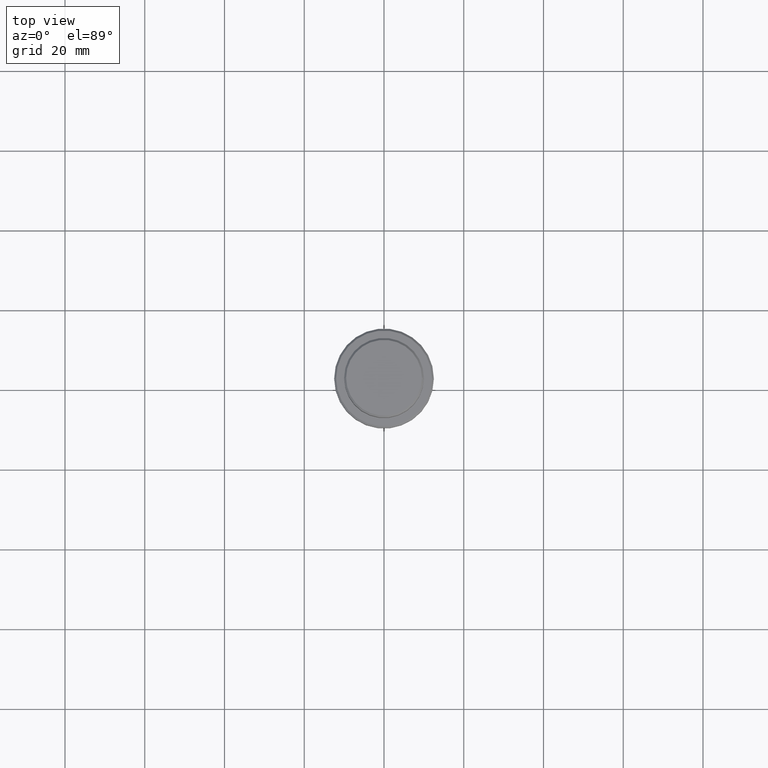
[diagram: clean part render]
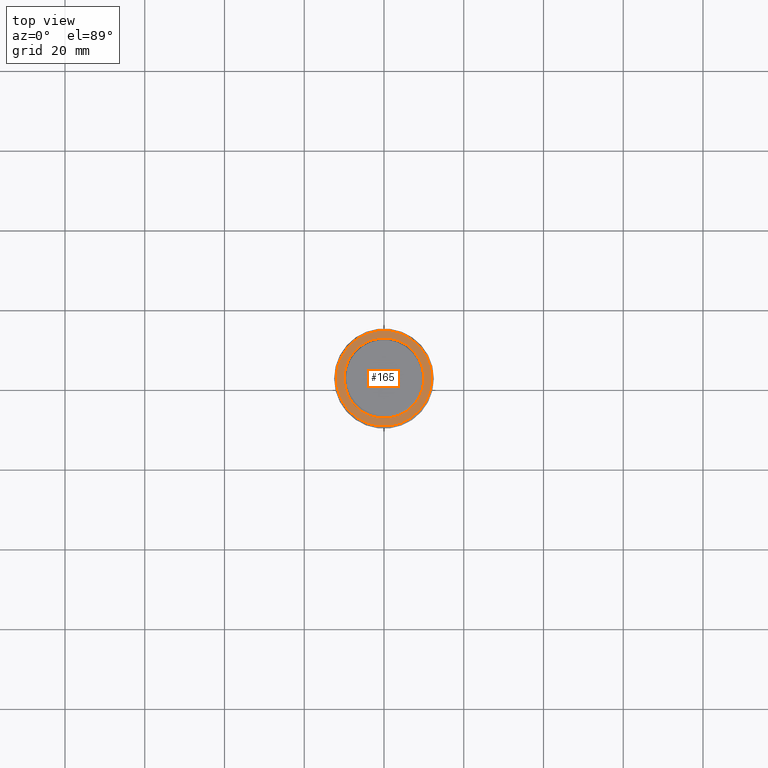
[diagram: same view with one face highlighted and labeled with its STEP entity id]
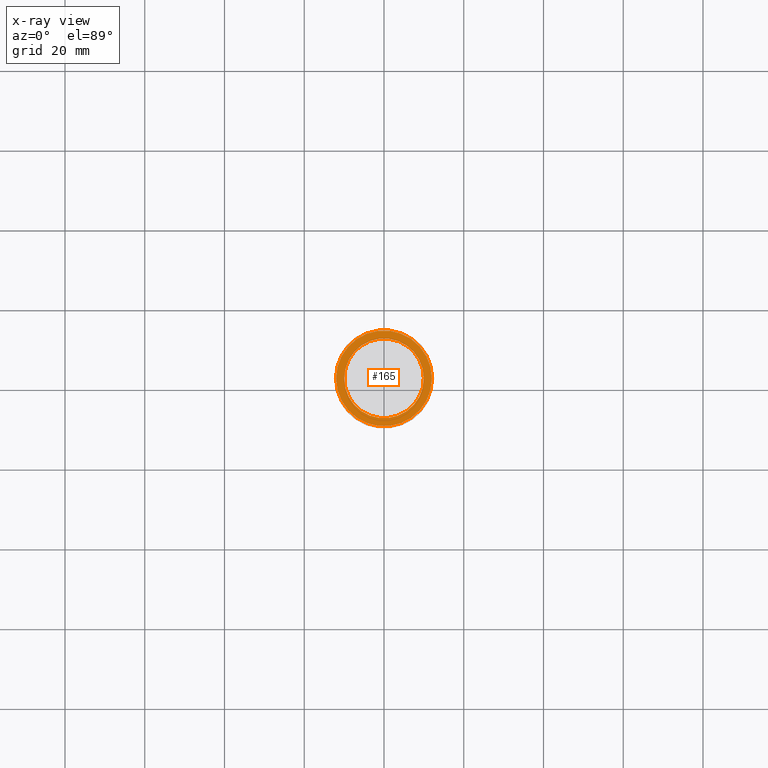
[diagram: x-ray of the same camera — body ghosted, the highlighted face saturated]
A machine part, top view. The second image highlights one B-rep face of the part: STEP entity #165.
The next image is the same camera in x-ray: the body ghosted, the highlighted face saturated — about 0% of this face is hidden behind the body in this view.
In plain terms, the highlighted planar face has unit normal (0, -0, 1).
Its self-contained STEP definition (entity closure, byte-faithful):
#1 = VERTEX_POINT ( 'NONE', #352 ) ;
#10 = DIRECTION ( 'NONE',  ( 0.000000000000000000, 0.000000000000000000, -1.000000000000000000 ) ) ;
#17 = EDGE_CURVE ( 'NONE', #1375, #1, #1149, .T. ) ;
#43 = VERTEX_POINT ( 'NONE', #94 ) ;
#79 = FACE_OUTER_BOUND ( 'NONE', #799, .T. ) ;
#94 = CARTESIAN_POINT ( 'NONE',  ( 9.999999999999992895, 0.000000000000000000, -9.000000000000000000 ) ) ;
#165 = ADVANCED_FACE ( 'NONE', ( #79, #190 ), #393, .T. ) ;
#176 = CIRCLE ( 'NONE', #1347, 9.999999999999992895 ) ;
#190 = FACE_BOUND ( 'NONE', #922, .T. ) ;
#251 = AXIS2_PLACEMENT_3D ( 'NONE', #1109, #1282, #1270 ) ;
#270 = EDGE_CURVE ( 'NONE', #43, #455, #176, .T. ) ;
#345 = DIRECTION ( 'NONE',  ( 0.000000000000000000, -0.000000000000000000, 1.000000000000000000 ) ) ;
#352 = CARTESIAN_POINT ( 'NONE',  ( -12.00000000000001066, 0.000000000000000000, -9.000000000000000000 ) ) ;
#393 = PLANE ( 'NONE',  #754 ) ;
#455 = VERTEX_POINT ( 'NONE', #771 ) ;
#459 = EDGE_CURVE ( 'NONE', #455, #43, #497, .T. ) ;
#467 = ORIENTED_EDGE ( 'NONE', *, *, #17, .T. ) ;
#494 = ORIENTED_EDGE ( 'NONE', *, *, #459, .T. ) ;
#497 = CIRCLE ( 'NONE', #251, 9.999999999999992895 ) ;
#548 = CARTESIAN_POINT ( 'NONE',  ( 0.000000000000000000, 0.000000000000000000, -9.000000000000000000 ) ) ;
#580 = DIRECTION ( 'NONE',  ( 1.000000000000000000, 0.000000000000000000, 0.000000000000000000 ) ) ;
#713 = DIRECTION ( 'NONE',  ( -0.000000000000000000, -0.000000000000000000, 1.000000000000000000 ) ) ;
#725 = ORIENTED_EDGE ( 'NONE', *, *, #270, .T. ) ;
#751 = AXIS2_PLACEMENT_3D ( 'NONE', #806, #713, #1171 ) ;
#754 = AXIS2_PLACEMENT_3D ( 'NONE', #1062, #345, #1330 ) ;
#771 = CARTESIAN_POINT ( 'NONE',  ( -9.999999999999992895, 1.224646799147352468E-15, -9.000000000000000000 ) ) ;
#781 = CARTESIAN_POINT ( 'NONE',  ( 0.000000000000000000, 0.000000000000000000, -9.000000000000000000 ) ) ;
#799 = EDGE_LOOP ( 'NONE', ( #925, #467 ) ) ;
#806 = CARTESIAN_POINT ( 'NONE',  ( 0.000000000000000000, 0.000000000000000000, -9.000000000000000000 ) ) ;
#854 = DIRECTION ( 'NONE',  ( 1.000000000000000000, 0.000000000000000000, 0.000000000000000000 ) ) ;
#922 = EDGE_LOOP ( 'NONE', ( #725, #494 ) ) ;
#925 = ORIENTED_EDGE ( 'NONE', *, *, #957, .T. ) ;
#946 = CARTESIAN_POINT ( 'NONE',  ( 12.00000000000001066, 1.500192328955508326E-15, -9.000000000000000000 ) ) ;
#957 = EDGE_CURVE ( 'NONE', #1, #1375, #1387, .T. ) ;
#1062 = CARTESIAN_POINT ( 'NONE',  ( 0.000000000000000000, 9.499999999999992895, -9.000000000000000000 ) ) ;
#1109 = CARTESIAN_POINT ( 'NONE',  ( 0.000000000000000000, 0.000000000000000000, -9.000000000000000000 ) ) ;
#1120 = DIRECTION ( 'NONE',  ( -0.000000000000000000, -0.000000000000000000, 1.000000000000000000 ) ) ;
#1149 = CIRCLE ( 'NONE', #1388, 12.00000000000001066 ) ;
#1171 = DIRECTION ( 'NONE',  ( 1.000000000000000000, 0.000000000000000000, 0.000000000000000000 ) ) ;
#1270 = DIRECTION ( 'NONE',  ( 1.000000000000000000, 0.000000000000000000, 0.000000000000000000 ) ) ;
#1282 = DIRECTION ( 'NONE',  ( 0.000000000000000000, 0.000000000000000000, -1.000000000000000000 ) ) ;
#1330 = DIRECTION ( 'NONE',  ( 1.000000000000000000, 0.000000000000000000, 0.000000000000000000 ) ) ;
#1347 = AXIS2_PLACEMENT_3D ( 'NONE', #548, #10, #854 ) ;
#1375 = VERTEX_POINT ( 'NONE', #946 ) ;
#1387 = CIRCLE ( 'NONE', #751, 12.00000000000001066 ) ;
#1388 = AXIS2_PLACEMENT_3D ( 'NONE', #781, #1120, #580 ) ;